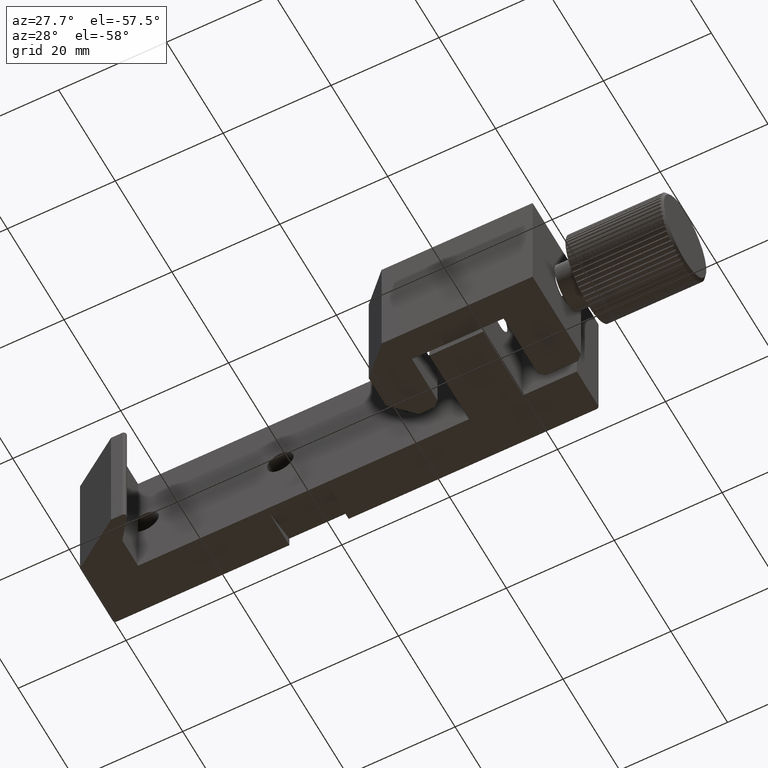
[diagram: clean part render]
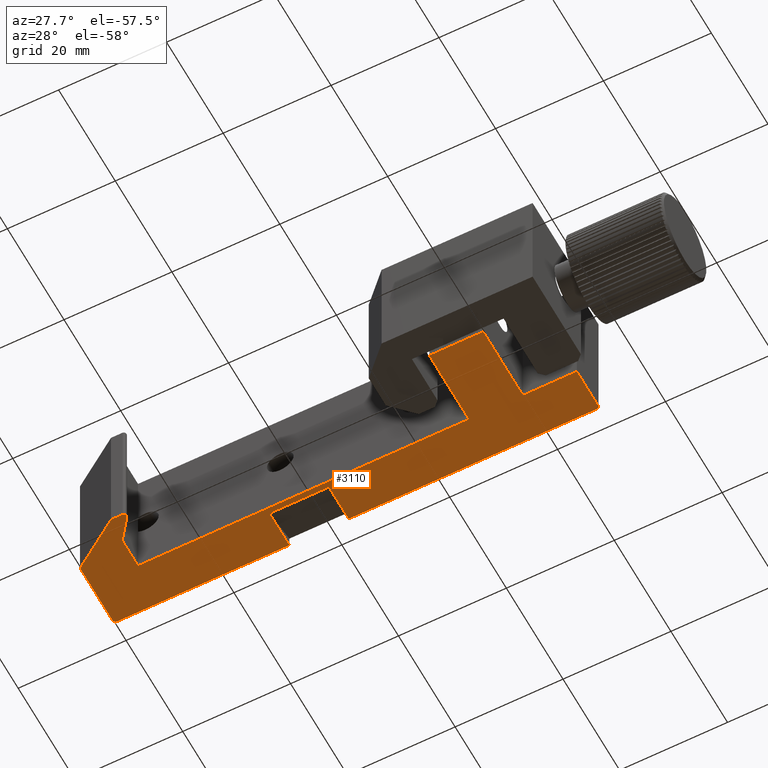
[diagram: same view with one face highlighted and labeled with its STEP entity id]
A machine part, auxiliary view. The second image highlights one B-rep face of the part: STEP entity #3110.
In plain terms, the highlighted planar face has unit normal (0, 0, 1).
Its self-contained STEP definition (entity closure, byte-faithful):
#50 = LINE ( 'NONE', #4229, #59 ) ;
#51 = LINE ( 'NONE', #4221, #52 ) ;
#52 = VECTOR ( 'NONE', #4228, 1000.000000000000000 ) ;
#55 = VECTOR ( 'NONE', #4226, 1000.000000000000000 ) ;
#57 = LINE ( 'NONE', #4220, #55 ) ;
#59 = VECTOR ( 'NONE', #4230, 1000.000000000000000 ) ;
#410 = EDGE_CURVE ( 'NONE', #4990, #4977, #4597, .T. ) ;
#843 = LINE ( 'NONE', #6372, #846 ) ;
#846 = VECTOR ( 'NONE', #6374, 1000.000000000000000 ) ;
#852 = LINE ( 'NONE', #6369, #854 ) ;
#854 = VECTOR ( 'NONE', #6383, 1000.000000000000000 ) ;
#856 = LINE ( 'NONE', #6387, #859 ) ;
#859 = VECTOR ( 'NONE', #6389, 1000.000000000000000 ) ;
#865 = LINE ( 'NONE', #6379, #867 ) ;
#867 = VECTOR ( 'NONE', #6396, 1000.000000000000000 ) ;
#881 = LINE ( 'NONE', #6427, #883 ) ;
#883 = VECTOR ( 'NONE', #6428, 1000.000000000000000 ) ;
#884 = LINE ( 'NONE', #6431, #887 ) ;
#887 = VECTOR ( 'NONE', #6432, 1000.000000000000000 ) ;
#892 = LINE ( 'NONE', #6438, #895 ) ;
#895 = VECTOR ( 'NONE', #6439, 1000.000000000000100 ) ;
#898 = CIRCLE ( 'NONE', #1129, 0.5000000000000004400 ) ;
#902 = LINE ( 'NONE', #6453, #905 ) ;
#905 = VECTOR ( 'NONE', #6455, 1000.000000000000000 ) ;
#908 = LINE ( 'NONE', #6459, #911 ) ;
#911 = VECTOR ( 'NONE', #6460, 1000.000000000000000 ) ;
#914 = LINE ( 'NONE', #6464, #917 ) ;
#917 = VECTOR ( 'NONE', #6465, 1000.000000000000000 ) ;
#920 = CIRCLE ( 'NONE', #1131, 0.5000000000000004400 ) ;
#945 = CIRCLE ( 'NONE', #1134, 0.5000000000000004400 ) ;
#948 = LINE ( 'NONE', #6507, #950 ) ;
#950 = VECTOR ( 'NONE', #6508, 1000.000000000000000 ) ;
#953 = LINE ( 'NONE', #6512, #956 ) ;
#956 = VECTOR ( 'NONE', #6514, 1000.000000000000000 ) ;
#1129 = AXIS2_PLACEMENT_3D ( 'NONE', #6445, #6446, #6447 ) ;
#1131 = AXIS2_PLACEMENT_3D ( 'NONE', #6471, #6472, #6473 ) ;
#1134 = AXIS2_PLACEMENT_3D ( 'NONE', #6504, #6505, #6506 ) ;
#1757 = ORIENTED_EDGE ( 'NONE', *, *, #6992, .F. ) ;
#1758 = ORIENTED_EDGE ( 'NONE', *, *, #6989, .F. ) ;
#1759 = ORIENTED_EDGE ( 'NONE', *, *, #5518, .F. ) ;
#1760 = ORIENTED_EDGE ( 'NONE', *, *, #6987, .F. ) ;
#1761 = ORIENTED_EDGE ( 'NONE', *, *, #410, .F. ) ;
#1762 = ORIENTED_EDGE ( 'NONE', *, *, #6929, .F. ) ;
#1763 = ORIENTED_EDGE ( 'NONE', *, *, #6933, .F. ) ;
#1764 = ORIENTED_EDGE ( 'NONE', *, *, #6936, .F. ) ;
#1765 = ORIENTED_EDGE ( 'NONE', *, *, #6940, .F. ) ;
#1766 = ORIENTED_EDGE ( 'NONE', *, *, #6952, .F. ) ;
#1767 = ORIENTED_EDGE ( 'NONE', *, *, #6954, .F. ) ;
#1768 = ORIENTED_EDGE ( 'NONE', *, *, #6958, .F. ) ;
#1769 = ORIENTED_EDGE ( 'NONE', *, *, #6961, .F. ) ;
#1770 = ORIENTED_EDGE ( 'NONE', *, *, #6964, .F. ) ;
#1771 = ORIENTED_EDGE ( 'NONE', *, *, #6967, .F. ) ;
#1772 = ORIENTED_EDGE ( 'NONE', *, *, #6970, .F. ) ;
#1773 = ORIENTED_EDGE ( 'NONE', *, *, #6973, .F. ) ;
#1774 = ORIENTED_EDGE ( 'NONE', *, *, #5519, .F. ) ;
#1775 = ORIENTED_EDGE ( 'NONE', *, *, #5520, .F. ) ;
#1811 = EDGE_LOOP ( 'NONE', ( #1757, #1758, #1759, #1760, #1761, #1762, #1763, #1764, #1765, #1766, #1767, #1768, #1769, #1770, #1771, #1772, #1773, #1774, #1775 ) ) ;
#2215 = CARTESIAN_POINT ( 'NONE',  ( 9.314872259669336100, 16.55953042695676900, -12.50000000000000000 ) ) ;
#2226 = CARTESIAN_POINT ( 'NONE',  ( -0.6851277403306654800, 9.059530426956769100, -12.50000000000000000 ) ) ;
#2228 = CARTESIAN_POINT ( 'NONE',  ( 9.314872259669336100, 9.059530426956770900, -12.50000000000000000 ) ) ;
#2231 = CARTESIAN_POINT ( 'NONE',  ( -10.68512774033066700, -4.940469573043227300, -12.50000000000000000 ) ) ;
#2234 = CARTESIAN_POINT ( 'NONE',  ( -0.6851277403306654800, -4.940469573043227300, -12.50000000000000000 ) ) ;
#2235 = CARTESIAN_POINT ( 'NONE',  ( -71.78976192925418300, -0.9404695730432267600, -12.50000000000000000 ) ) ;
#2238 = CARTESIAN_POINT ( 'NONE',  ( -10.68512774033066700, 9.059530426956770900, -12.50000000000000000 ) ) ;
#2239 = CARTESIAN_POINT ( 'NONE',  ( -69.68797259446017700, -0.9404695730432267600, -12.50000000000000000 ) ) ;
#2242 = CARTESIAN_POINT ( 'NONE',  ( -72.03512774033066500, 9.059530426956765600, -12.50000000000000000 ) ) ;
#2243 = CARTESIAN_POINT ( 'NONE',  ( -80.68512774033065700, 5.059530426956771800, -12.50000000000000000 ) ) ;
#2244 = CARTESIAN_POINT ( 'NONE',  ( -72.03512774033066500, 3.505130579385166800, -12.50000000000000000 ) ) ;
#2245 = CARTESIAN_POINT ( 'NONE',  ( -69.28865483943653200, -0.1395620614671952400, -12.50000000000000000 ) ) ;
#2247 = CARTESIAN_POINT ( 'NONE',  ( -80.68512774033065700, 16.55953042695676900, -12.50000000000000000 ) ) ;
#2249 = CARTESIAN_POINT ( 'NONE',  ( -80.18512774033065700, 17.05953042695677300, -12.50000000000000000 ) ) ;
#2260 = CARTESIAN_POINT ( 'NONE',  ( -37.18512774033066400, 10.05953042695676600, -12.50000000000000000 ) ) ;
#2261 = CARTESIAN_POINT ( 'NONE',  ( 8.814872259669336100, 17.05953042695677300, -12.50000000000000000 ) ) ;
#2263 = CARTESIAN_POINT ( 'NONE',  ( -48.18512774033065700, 10.05953042695676600, -12.50000000000000000 ) ) ;
#2264 = CARTESIAN_POINT ( 'NONE',  ( -37.18512774033066400, 17.05953042695677300, -12.50000000000000000 ) ) ;
#2267 = CARTESIAN_POINT ( 'NONE',  ( -48.18512774033065700, 17.05953042695677300, -12.50000000000000000 ) ) ;
#3110 = ADVANCED_FACE ( 'NONE', ( #5723 ), #7055, .F. ) ;
#3717 = CARTESIAN_POINT ( 'NONE',  ( 9.314872259669336100, 16.55953042695676900, -12.50000000000000000 ) ) ;
#3722 = DIRECTION ( 'NONE',  ( -0.0000000000000000000, 1.000000000000000000, -0.0000000000000000000 ) ) ;
#3811 = AXIS2_PLACEMENT_3D ( 'NONE', #7048, #7057, #7058 ) ;
#4220 = CARTESIAN_POINT ( 'NONE',  ( -80.18512774033065700, 17.05953042695677300, -12.50000000000000000 ) ) ;
#4221 = CARTESIAN_POINT ( 'NONE',  ( -80.18512774033065700, 17.05953042695677300, -12.50000000000000000 ) ) ;
#4226 = DIRECTION ( 'NONE',  ( -1.000000000000000000, -0.0000000000000000000, -0.0000000000000000000 ) ) ;
#4228 = DIRECTION ( 'NONE',  ( -1.000000000000000000, -0.0000000000000000000, -0.0000000000000000000 ) ) ;
#4229 = CARTESIAN_POINT ( 'NONE',  ( -48.18512774033065700, 17.05953042695677300, -12.50000000000000000 ) ) ;
#4230 = DIRECTION ( 'NONE',  ( -0.0000000000000000000, 1.000000000000000000, -0.0000000000000000000 ) ) ;
#4597 = LINE ( 'NONE', #3717, #4608 ) ;
#4608 = VECTOR ( 'NONE', #3722, 1000.000000000000000 ) ;
#4977 = VERTEX_POINT ( 'NONE', #2215 ) ;
#4988 = VERTEX_POINT ( 'NONE', #2226 ) ;
#4990 = VERTEX_POINT ( 'NONE', #2228 ) ;
#4993 = VERTEX_POINT ( 'NONE', #2231 ) ;
#4996 = VERTEX_POINT ( 'NONE', #2234 ) ;
#4997 = VERTEX_POINT ( 'NONE', #2235 ) ;
#5000 = VERTEX_POINT ( 'NONE', #2238 ) ;
#5001 = VERTEX_POINT ( 'NONE', #2239 ) ;
#5004 = VERTEX_POINT ( 'NONE', #2242 ) ;
#5005 = VERTEX_POINT ( 'NONE', #2243 ) ;
#5006 = VERTEX_POINT ( 'NONE', #2244 ) ;
#5007 = VERTEX_POINT ( 'NONE', #2245 ) ;
#5009 = VERTEX_POINT ( 'NONE', #2247 ) ;
#5011 = VERTEX_POINT ( 'NONE', #2249 ) ;
#5022 = VERTEX_POINT ( 'NONE', #2260 ) ;
#5023 = VERTEX_POINT ( 'NONE', #2261 ) ;
#5025 = VERTEX_POINT ( 'NONE', #2263 ) ;
#5026 = VERTEX_POINT ( 'NONE', #2264 ) ;
#5029 = VERTEX_POINT ( 'NONE', #2267 ) ;
#5518 = EDGE_CURVE ( 'NONE', #5023, #5026, #57, .T. ) ;
#5519 = EDGE_CURVE ( 'NONE', #5029, #5011, #51, .T. ) ;
#5520 = EDGE_CURVE ( 'NONE', #5025, #5029, #50, .T. ) ;
#5723 = FACE_OUTER_BOUND ( 'NONE', #1811, .T. ) ;
#6369 = CARTESIAN_POINT ( 'NONE',  ( -0.6851277403306654800, 9.059530426956769100, -12.50000000000000000 ) ) ;
#6372 = CARTESIAN_POINT ( 'NONE',  ( 9.314872259669336100, 9.059530426956770900, -12.50000000000000000 ) ) ;
#6374 = DIRECTION ( 'NONE',  ( 1.000000000000000000, 1.734723475976806800E-016, -0.0000000000000000000 ) ) ;
#6379 = CARTESIAN_POINT ( 'NONE',  ( -10.68512774033066700, -4.940469573043227300, -12.50000000000000000 ) ) ;
#6383 = DIRECTION ( 'NONE',  ( -0.0000000000000000000, 1.000000000000000000, -0.0000000000000000000 ) ) ;
#6387 = CARTESIAN_POINT ( 'NONE',  ( -0.6851277403306654800, -4.940469573043227300, -12.50000000000000000 ) ) ;
#6389 = DIRECTION ( 'NONE',  ( 1.000000000000000000, -0.0000000000000000000, -0.0000000000000000000 ) ) ;
#6396 = DIRECTION ( 'NONE',  ( -0.0000000000000000000, -1.000000000000000000, -0.0000000000000000000 ) ) ;
#6427 = CARTESIAN_POINT ( 'NONE',  ( -10.68512774033066700, 9.059530426956770900, -12.50000000000000000 ) ) ;
#6428 = DIRECTION ( 'NONE',  ( 1.000000000000000000, 1.131034051166622500E-016, -0.0000000000000000000 ) ) ;
#6431 = CARTESIAN_POINT ( 'NONE',  ( -72.03512774033066500, 9.059530426956765600, -12.50000000000000000 ) ) ;
#6432 = DIRECTION ( 'NONE',  ( -0.0000000000000000000, 1.000000000000000000, -0.0000000000000000000 ) ) ;
#6438 = CARTESIAN_POINT ( 'NONE',  ( -72.03512774033066500, 3.505130579385166800, -12.50000000000000000 ) ) ;
#6439 = DIRECTION ( 'NONE',  ( -0.6018150231520469400, 0.7986355100472938300, -0.0000000000000000000 ) ) ;
#6445 = CARTESIAN_POINT ( 'NONE',  ( -69.68797259446016300, -0.4404695730432263100, -12.50000000000000000 ) ) ;
#6446 = DIRECTION ( 'NONE',  ( 0.0000000000000000000, 0.0000000000000000000, 1.000000000000000000 ) ) ;
#6447 = DIRECTION ( 'NONE',  ( 1.000000000000000000, 0.0000000000000000000, 0.0000000000000000000 ) ) ;
#6453 = CARTESIAN_POINT ( 'NONE',  ( -69.68797259446017700, -0.9404695730432267600, -12.50000000000000000 ) ) ;
#6455 = DIRECTION ( 'NONE',  ( 1.000000000000000000, -0.0000000000000000000, -0.0000000000000000000 ) ) ;
#6459 = CARTESIAN_POINT ( 'NONE',  ( -71.78976192925418300, -0.9404695730432267600, -12.50000000000000000 ) ) ;
#6460 = DIRECTION ( 'NONE',  ( 0.8290375725550430700, -0.5591929034707448000, -0.0000000000000000000 ) ) ;
#6464 = CARTESIAN_POINT ( 'NONE',  ( -80.68512774033065700, 5.059530426956771800, -12.50000000000000000 ) ) ;
#6465 = DIRECTION ( 'NONE',  ( -0.0000000000000000000, -1.000000000000000000, -0.0000000000000000000 ) ) ;
#6471 = CARTESIAN_POINT ( 'NONE',  ( -80.18512774033065700, 16.55953042695677300, -12.50000000000000000 ) ) ;
#6472 = DIRECTION ( 'NONE',  ( 0.0000000000000000000, 0.0000000000000000000, 1.000000000000000000 ) ) ;
#6473 = DIRECTION ( 'NONE',  ( 1.000000000000000000, 0.0000000000000000000, 0.0000000000000000000 ) ) ;
#6504 = CARTESIAN_POINT ( 'NONE',  ( 8.814872259669336100, 16.55953042695677300, -12.50000000000000000 ) ) ;
#6505 = DIRECTION ( 'NONE',  ( 0.0000000000000000000, 0.0000000000000000000, 1.000000000000000000 ) ) ;
#6506 = DIRECTION ( 'NONE',  ( 1.000000000000000000, 0.0000000000000000000, 0.0000000000000000000 ) ) ;
#6507 = CARTESIAN_POINT ( 'NONE',  ( -37.18512774033066400, 17.05953042695677300, -12.50000000000000000 ) ) ;
#6508 = DIRECTION ( 'NONE',  ( 4.956352788505159300E-016, -1.000000000000000000, 0.0000000000000000000 ) ) ;
#6512 = CARTESIAN_POINT ( 'NONE',  ( -37.18512774033065700, 10.05953042695676600, -12.50000000000000000 ) ) ;
#6514 = DIRECTION ( 'NONE',  ( -1.000000000000000000, -7.885106708985487800E-017, 0.0000000000000000000 ) ) ;
#6929 = EDGE_CURVE ( 'NONE', #4988, #4990, #843, .T. ) ;
#6933 = EDGE_CURVE ( 'NONE', #4996, #4988, #852, .T. ) ;
#6936 = EDGE_CURVE ( 'NONE', #4993, #4996, #856, .T. ) ;
#6940 = EDGE_CURVE ( 'NONE', #5000, #4993, #865, .T. ) ;
#6952 = EDGE_CURVE ( 'NONE', #5004, #5000, #881, .T. ) ;
#6954 = EDGE_CURVE ( 'NONE', #5006, #5004, #884, .T. ) ;
#6958 = EDGE_CURVE ( 'NONE', #5007, #5006, #892, .T. ) ;
#6961 = EDGE_CURVE ( 'NONE', #5001, #5007, #898, .T. ) ;
#6964 = EDGE_CURVE ( 'NONE', #4997, #5001, #902, .T. ) ;
#6967 = EDGE_CURVE ( 'NONE', #5005, #4997, #908, .T. ) ;
#6970 = EDGE_CURVE ( 'NONE', #5009, #5005, #914, .T. ) ;
#6973 = EDGE_CURVE ( 'NONE', #5011, #5009, #920, .T. ) ;
#6987 = EDGE_CURVE ( 'NONE', #4977, #5023, #945, .T. ) ;
#6989 = EDGE_CURVE ( 'NONE', #5026, #5022, #948, .T. ) ;
#6992 = EDGE_CURVE ( 'NONE', #5022, #5025, #953, .T. ) ;
#7048 = CARTESIAN_POINT ( 'NONE',  ( -69.68797259446016300, -0.4404695730432263100, -12.50000000000000000 ) ) ;
#7055 = PLANE ( 'NONE',  #3811 ) ;
#7057 = DIRECTION ( 'NONE',  ( 0.0000000000000000000, 0.0000000000000000000, 1.000000000000000000 ) ) ;
#7058 = DIRECTION ( 'NONE',  ( 1.000000000000000000, 0.0000000000000000000, -0.0000000000000000000 ) ) ;